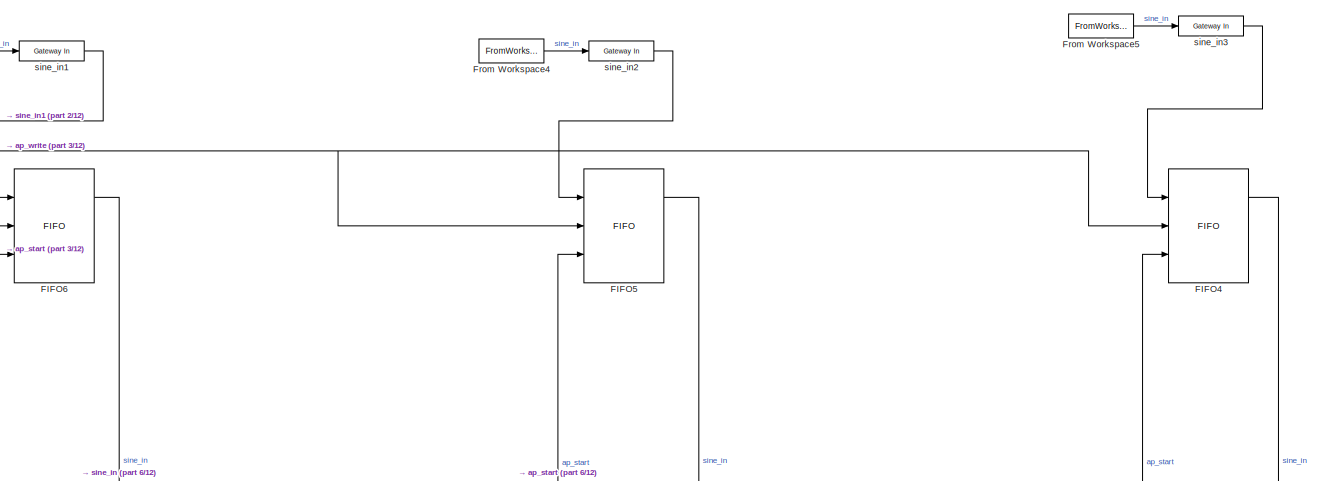
[diagram: root canvas - part 1/12, top left region]
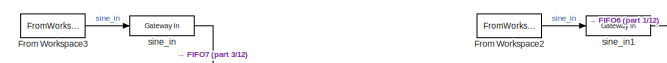
[diagram: root canvas - part 2/12, top left region]
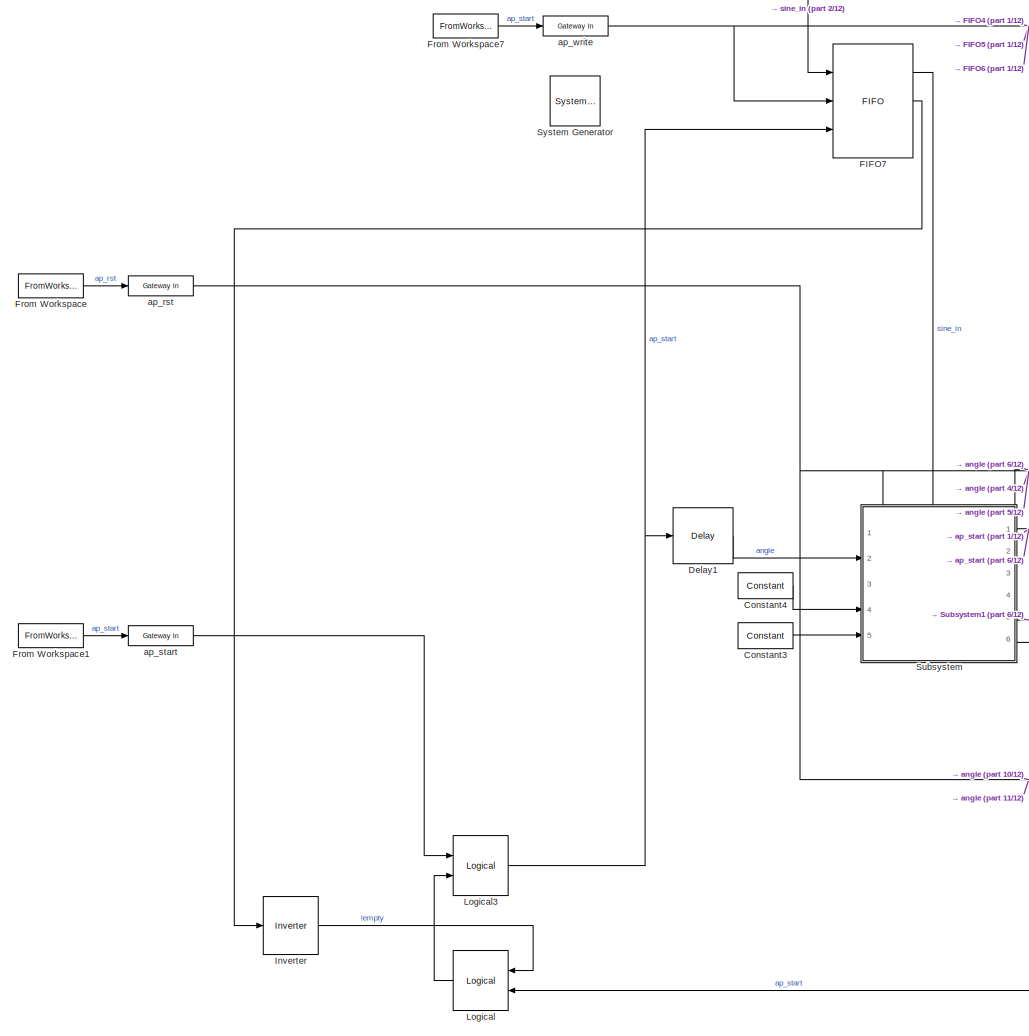
[diagram: root canvas - part 3/12, middle left region]
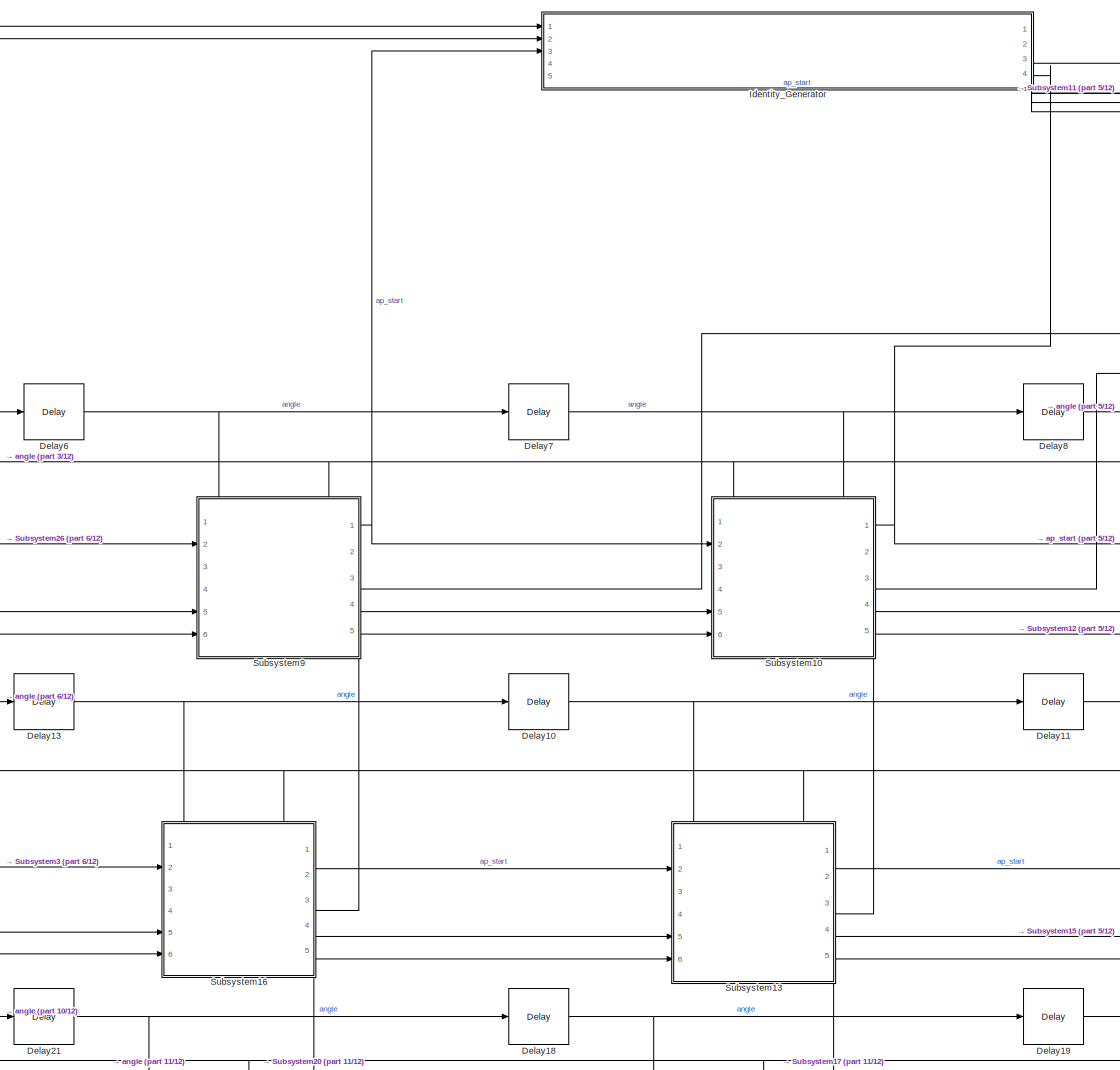
[diagram: root canvas - part 4/12, central region]
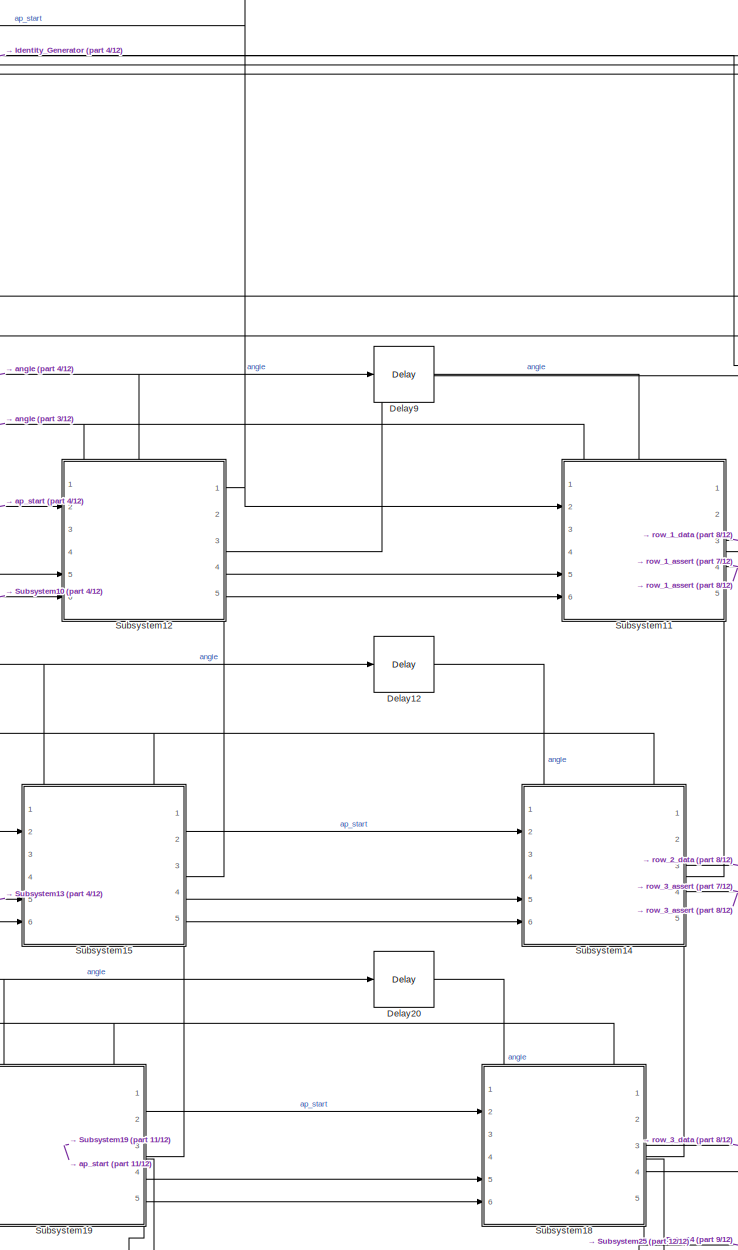
[diagram: root canvas - part 5/12, central region]
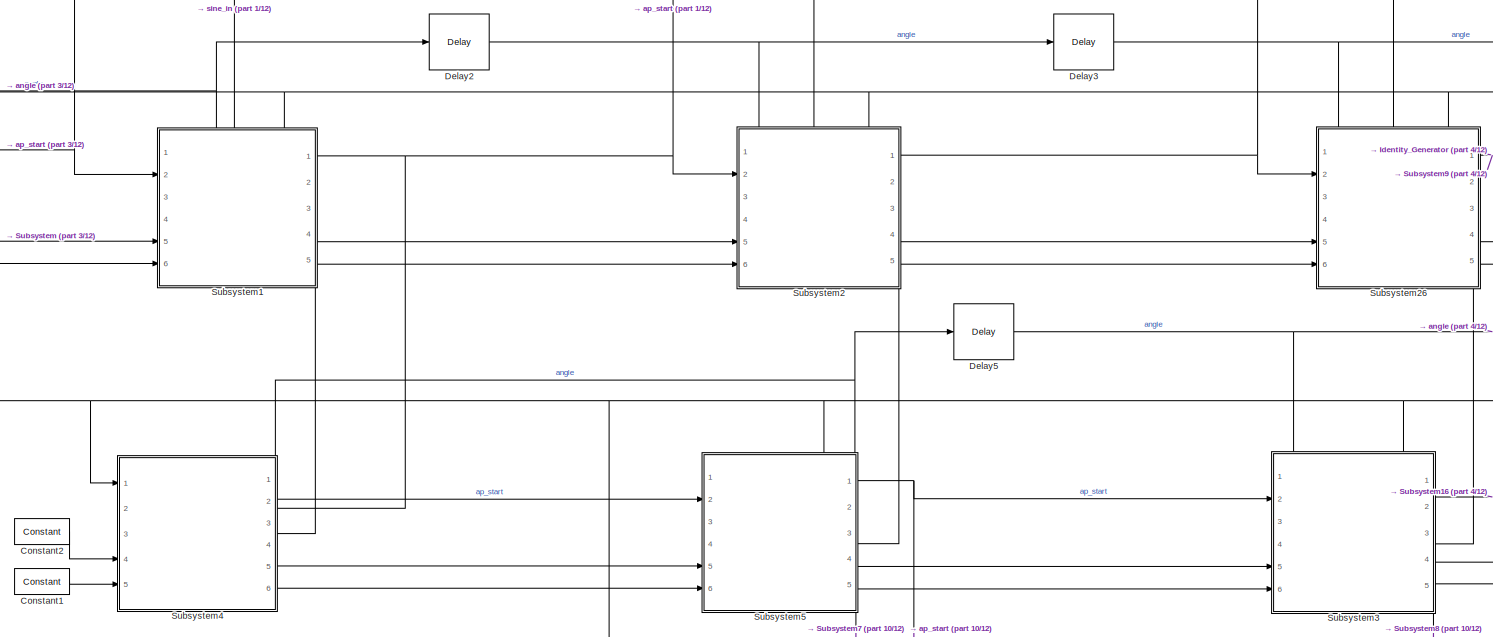
[diagram: root canvas - part 6/12, middle left region]
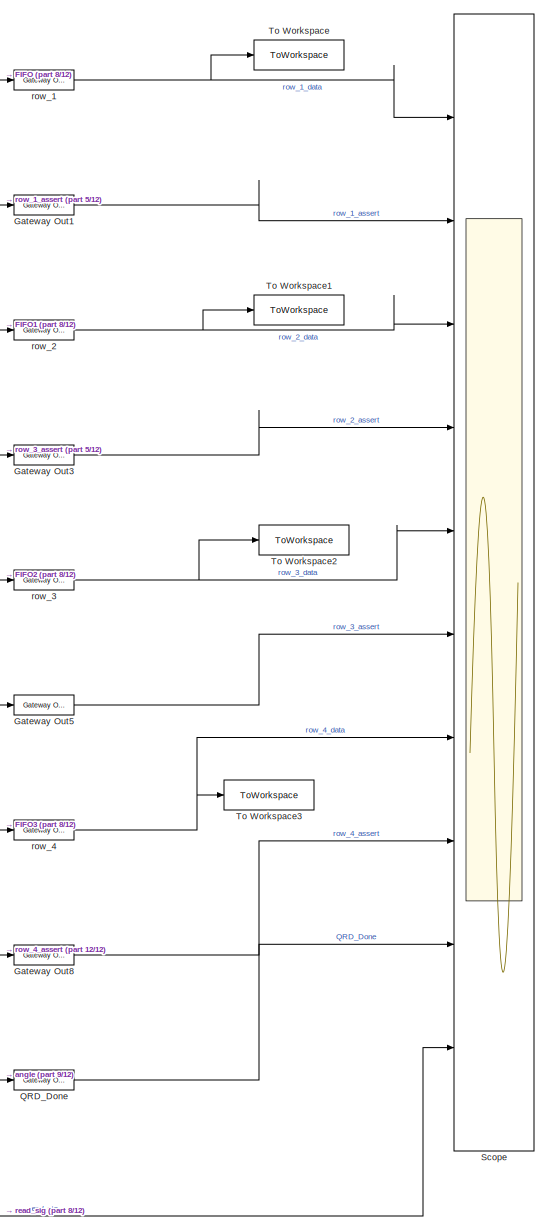
[diagram: root canvas - part 7/12, middle right region]
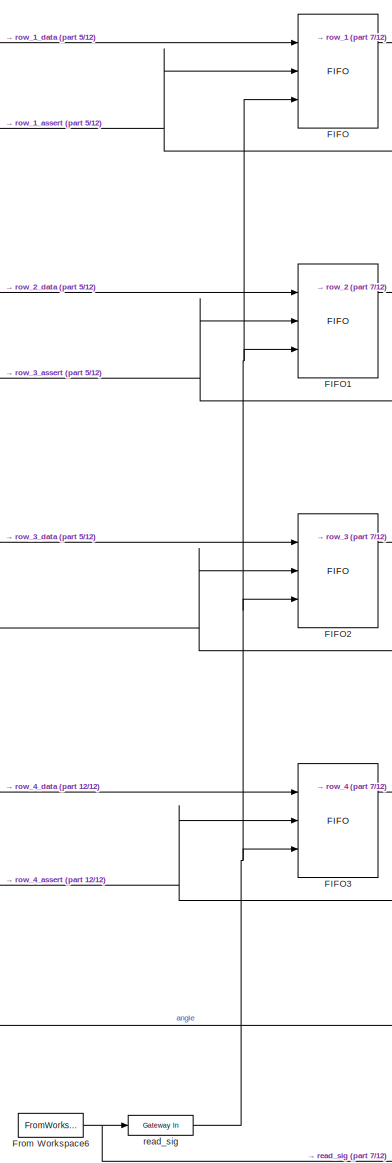
[diagram: root canvas - part 8/12, bottom right region]
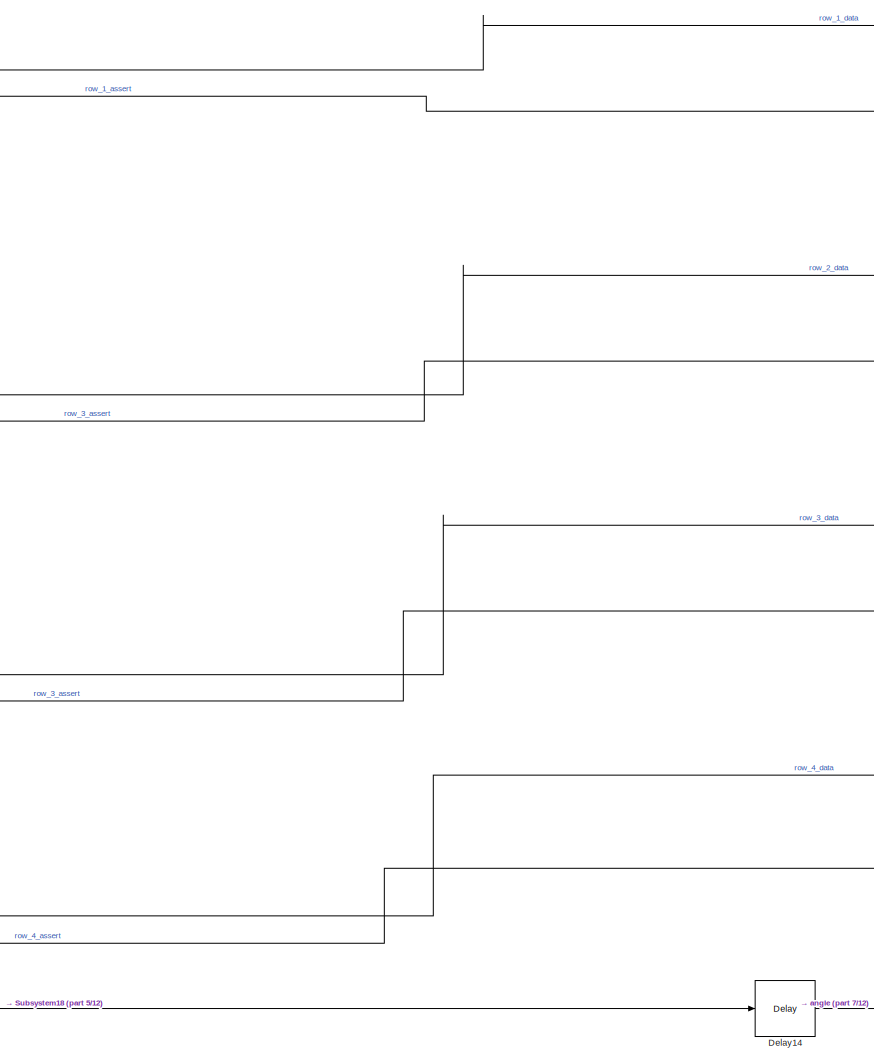
[diagram: root canvas - part 9/12, middle right region]
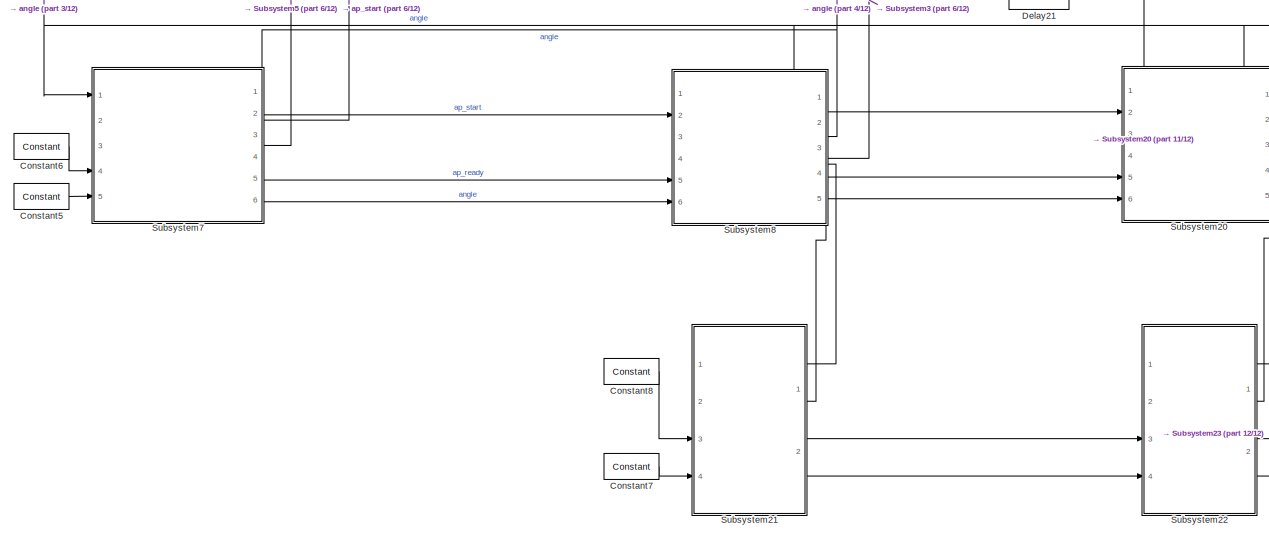
[diagram: root canvas - part 10/12, bottom center region]
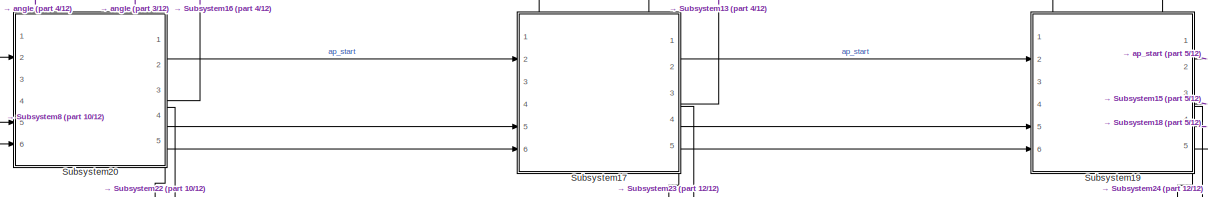
[diagram: root canvas - part 11/12, bottom center region]
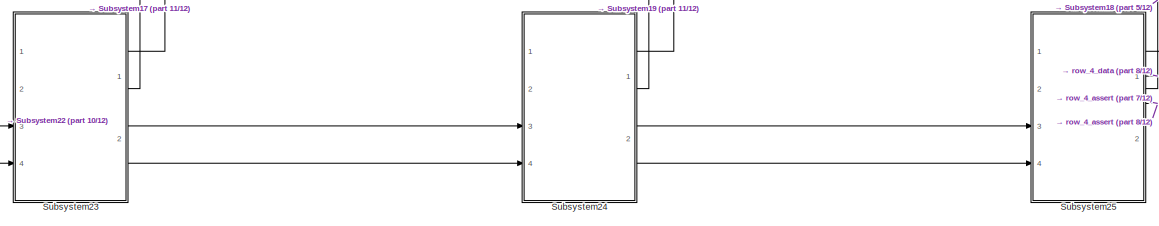
[diagram: root canvas - part 12/12, bottom center region]
MODEL slx_93025ea63f82
KIND model
CONFIG AbsTol = auto
CONFIG EnableMultiTasking = off
CONFIG FixedStep = auto
CONFIG MaxStep = auto
CONFIG MinStep = auto
CONFIG RelTol = 1e-3
CONFIG SampleTimeConstraint = Unconstrained
CONFIG SolverName = VariableStepAuto
CONFIG StartTime = 0.0
CONFIG StopTime = double(sim_length)
BLOCK [Reference]  System Generator  REF=xbsIndex_r4/ System Generator
  AttributesFormatString = System\nGenerator
  Ports = []
  SourceBlock = xbsIndex_r4/ System Generator
  SourceType = Xilinx System Generator Block
  Tag = genX
  UserDataPersistent = on
BLOCK [Reference] Constant1  REF=hdlBasic/Constant
  Ports = [0, 1]
  SourceBlock = hdlBasic/Constant
  SourceType = Constant Block Block
BLOCK [Reference] Constant2  REF=hdlBasic/Constant
  Ports = [0, 1]
  SourceBlock = hdlBasic/Constant
  SourceType = Constant Block Block
BLOCK [Reference] Constant3  REF=hdlBasic/Constant
  Ports = [0, 1]
  SourceBlock = hdlBasic/Constant
  SourceType = Constant Block Block
BLOCK [Reference] Constant4  REF=hdlBasic/Constant
  Ports = [0, 1]
  SourceBlock = hdlBasic/Constant
  SourceType = Constant Block Block
BLOCK [Reference] Constant5  REF=hdlBasic/Constant
  Ports = [0, 1]
  SourceBlock = hdlBasic/Constant
  SourceType = Constant Block Block
BLOCK [Reference] Constant6  REF=hdlBasic/Constant
  Ports = [0, 1]
  SourceBlock = hdlBasic/Constant
  SourceType = Constant Block Block
BLOCK [Reference] Constant7  REF=hdlBasic/Constant
  Ports = [0, 1]
  SourceBlock = hdlBasic/Constant
  SourceType = Constant Block Block
BLOCK [Reference] Constant8  REF=hdlBasic/Constant
  Ports = [0, 1]
  SourceBlock = hdlBasic/Constant
  SourceType = Constant Block Block
BLOCK [Reference] Delay1  REF=hdlBasic/Delay
  NameLocation = top
  Ports = [1, 1]
  SourceBlock = hdlBasic/Delay
  SourceType = Delay Block
BLOCK [Reference] Delay10  REF=hdlBasic/Delay
  NameLocation = top
  Ports = [1, 1]
  SourceBlock = hdlBasic/Delay
  SourceType = Delay Block
BLOCK [Reference] Delay11  REF=hdlBasic/Delay
  NameLocation = top
  Ports = [1, 1]
  SourceBlock = hdlBasic/Delay
  SourceType = Delay Block
BLOCK [Reference] Delay12  REF=hdlBasic/Delay
  NameLocation = top
  Ports = [1, 1]
  SourceBlock = hdlBasic/Delay
  SourceType = Delay Block
BLOCK [Reference] Delay13  REF=hdlBasic/Delay
  NameLocation = top
  Ports = [1, 1]
  SourceBlock = hdlBasic/Delay
  SourceType = Delay Block
BLOCK [Reference] Delay14  REF=hdlBasic/Delay
  NameLocation = top
  Ports = [1, 1]
  SourceBlock = hdlBasic/Delay
  SourceType = Delay Block
BLOCK [Reference] Delay18  REF=hdlBasic/Delay
  NameLocation = top
  Ports = [1, 1]
  SourceBlock = hdlBasic/Delay
  SourceType = Delay Block
BLOCK [Reference] Delay19  REF=hdlBasic/Delay
  NameLocation = top
  Ports = [1, 1]
  SourceBlock = hdlBasic/Delay
  SourceType = Delay Block
BLOCK [Reference] Delay2  REF=hdlBasic/Delay
  NameLocation = top
  Ports = [1, 1]
  SourceBlock = hdlBasic/Delay
  SourceType = Delay Block
BLOCK [Reference] Delay20  REF=hdlBasic/Delay
  NameLocation = top
  Ports = [1, 1]
  SourceBlock = hdlBasic/Delay
  SourceType = Delay Block
BLOCK [Reference] Delay21  REF=hdlBasic/Delay
  NameLocation = top
  Ports = [1, 1]
  SourceBlock = hdlBasic/Delay
  SourceType = Delay Block
BLOCK [Reference] Delay3  REF=hdlBasic/Delay
  NameLocation = top
  Ports = [1, 1]
  SourceBlock = hdlBasic/Delay
  SourceType = Delay Block
BLOCK [Reference] Delay5  REF=hdlBasic/Delay
  NameLocation = top
  Ports = [1, 1]
  SourceBlock = hdlBasic/Delay
  SourceType = Delay Block
BLOCK [Reference] Delay6  REF=hdlBasic/Delay
  NameLocation = top
  Ports = [1, 1]
  SourceBlock = hdlBasic/Delay
  SourceType = Delay Block
BLOCK [Reference] Delay7  REF=hdlBasic/Delay
  NameLocation = top
  Ports = [1, 1]
  SourceBlock = hdlBasic/Delay
  SourceType = Delay Block
BLOCK [Reference] Delay8  REF=hdlBasic/Delay
  NameLocation = top
  Ports = [1, 1]
  SourceBlock = hdlBasic/Delay
  SourceType = Delay Block
BLOCK [Reference] Delay9  REF=hdlBasic/Delay
  NameLocation = top
  Ports = [1, 1]
  SourceBlock = hdlBasic/Delay
  SourceType = Delay Block
BLOCK [Reference] FIFO  REF=hdlBasic/FIFO
  Ports = [3, 3]
  SourceBlock = hdlBasic/FIFO
  SourceType = FIFO Block Block
BLOCK [Reference] FIFO1  REF=hdlBasic/FIFO
  Ports = [3, 3]
  SourceBlock = hdlBasic/FIFO
  SourceType = FIFO Block Block
BLOCK [Reference] FIFO2  REF=hdlBasic/FIFO
  Ports = [3, 3]
  SourceBlock = hdlBasic/FIFO
  SourceType = FIFO Block Block
BLOCK [Reference] FIFO3  REF=hdlBasic/FIFO
  Ports = [3, 3]
  SourceBlock = hdlBasic/FIFO
  SourceType = FIFO Block Block
BLOCK [Reference] FIFO4  REF=hdlBasic/FIFO
  Ports = [3, 3]
  SourceBlock = hdlBasic/FIFO
  SourceType = FIFO Block Block
BLOCK [Reference] FIFO5  REF=hdlBasic/FIFO
  Ports = [3, 3]
  SourceBlock = hdlBasic/FIFO
  SourceType = FIFO Block Block
BLOCK [Reference] FIFO6  REF=hdlBasic/FIFO
  Ports = [3, 3]
  SourceBlock = hdlBasic/FIFO
  SourceType = FIFO Block Block
BLOCK [Reference] FIFO7  REF=hdlBasic/FIFO
  Ports = [3, 3]
  SourceBlock = hdlBasic/FIFO
  SourceType = FIFO Block Block
BLOCK [FromWorkspace] From Workspace
  OutputAfterFinalValue = Setting to zero
  VariableName = ap_rst
BLOCK [FromWorkspace] From Workspace1
  OutputAfterFinalValue = Setting to zero
  VariableName = ap_start
BLOCK [FromWorkspace] From Workspace2
  OutputAfterFinalValue = Setting to zero
  VariableName = col_2
BLOCK [FromWorkspace] From Workspace3
  OutputAfterFinalValue = Setting to zero
  VariableName = col_1
BLOCK [FromWorkspace] From Workspace4
  OutputAfterFinalValue = Setting to zero
  VariableName = col_3
BLOCK [FromWorkspace] From Workspace5
  OutputAfterFinalValue = Setting to zero
  VariableName = col_4
BLOCK [FromWorkspace] From Workspace6
  OutputAfterFinalValue = Setting to zero
  VariableName = read_sig
BLOCK [FromWorkspace] From Workspace7
  OutputAfterFinalValue = Setting to zero
  VariableName = write_sig
BLOCK [Reference] Gateway Out1  REF=hdlBasic/Gateway Out
  Commented = on
  Ports = [1, 1]
  SourceBlock = hdlBasic/Gateway Out
  SourceType = Gateway Out Block
BLOCK [Reference] Gateway Out3  REF=hdlBasic/Gateway Out
  Commented = on
  Ports = [1, 1]
  SourceBlock = hdlBasic/Gateway Out
  SourceType = Gateway Out Block
BLOCK [Reference] Gateway Out5  REF=hdlBasic/Gateway Out
  Commented = on
  Ports = [1, 1]
  SourceBlock = hdlBasic/Gateway Out
  SourceType = Gateway Out Block
BLOCK [Reference] Gateway Out8  REF=hdlBasic/Gateway Out
  Commented = on
  Ports = [1, 1]
  SourceBlock = hdlBasic/Gateway Out
  SourceType = Gateway Out Block
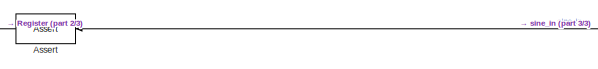
[diagram: Identity_Generator - part 1/3, top center region]
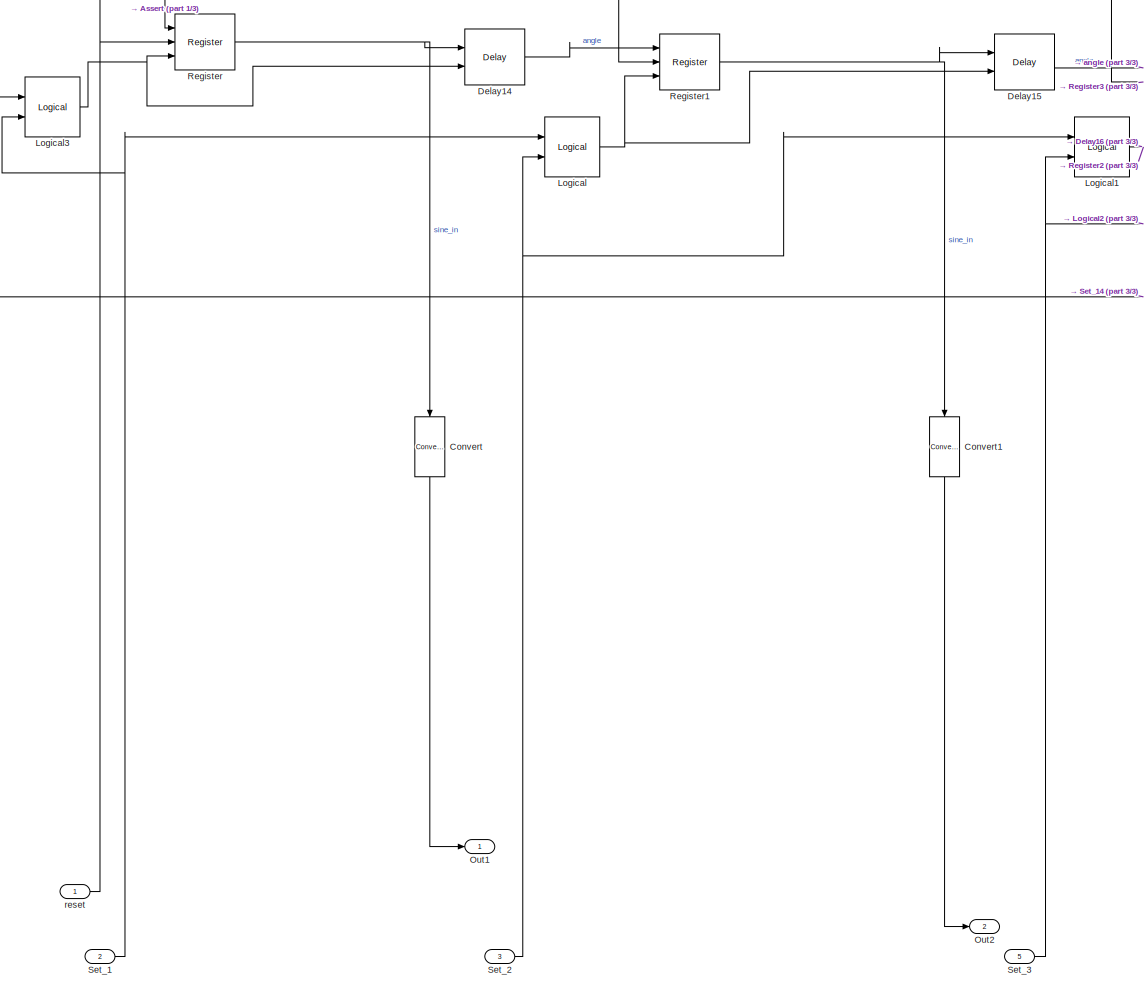
[diagram: Identity_Generator - part 2/3, left side, full height]
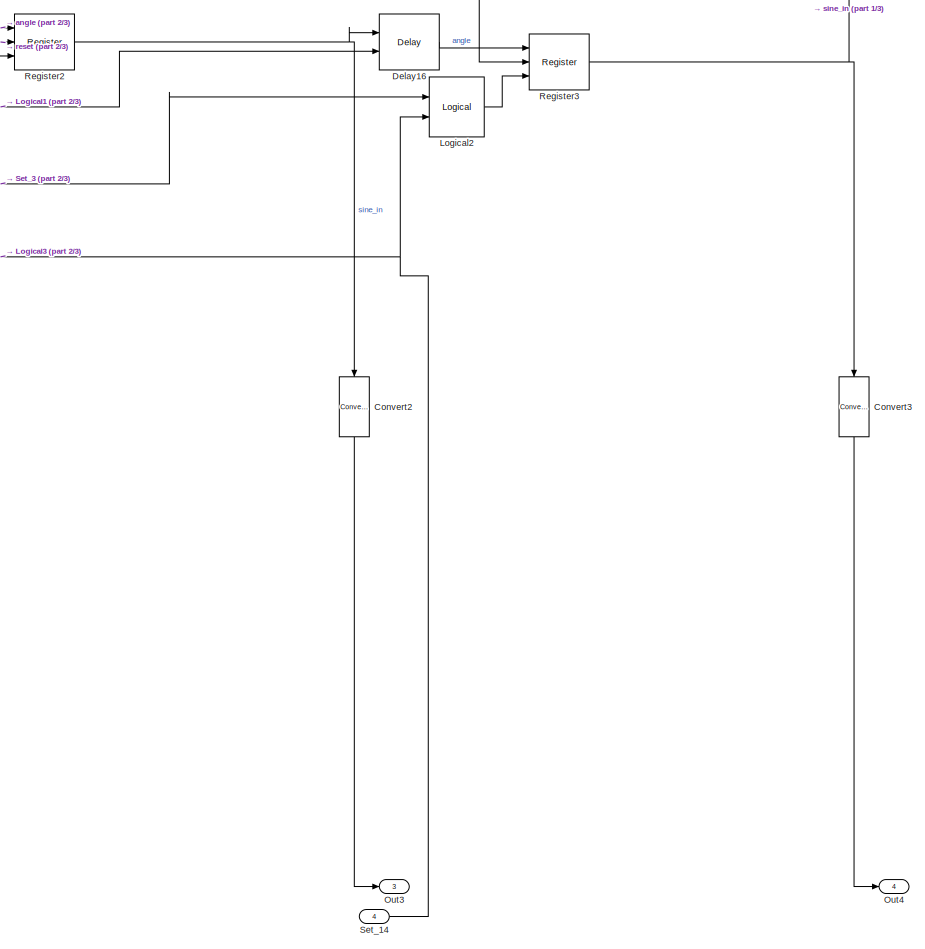
[diagram: Identity_Generator - part 3/3, right side, full height]
BLOCK [SubSystem] Identity_Generator
  PortSchema = {"entries":[{"content":{"sides":[{"content":{"connectorIds":["In1","In2","In3"]},"type":"ConnectorPlacement.EquallySpacedRectSide","uuid":"0b6d598e-788b-4177-bacd-31e0e736e987"},{"content":{"connectorIds":["In4","In5"],"side":"RIGHT"},"type":"ConnectorPlacement.EquallySpacedRectSide","uuid":"345316aa-10fe-48ba-a4ad-44129170dd6e"},{"content":{"connectorIds":[],"side":"TOP"},"type":"ConnectorPlaceme...<+428ch>
  Ports = [5, 4]
  RequestExecContextInheritance = off
BLOCK [Reference] Identity_Generator/Assert  REF=hdlBasic/Assert
  Ports = [1, 1]
  SourceBlock = hdlBasic/Assert
  SourceType = Assert Block
BLOCK [Reference] Identity_Generator/Convert  REF=hdlBasic/Convert
  NameLocation = left
  Ports = [1, 1]
  SourceBlock = hdlBasic/Convert
  SourceType = Type Converter Block
BLOCK [Reference] Identity_Generator/Convert1  REF=hdlBasic/Convert
  NameLocation = left
  Ports = [1, 1]
  SourceBlock = hdlBasic/Convert
  SourceType = Type Converter Block
BLOCK [Reference] Identity_Generator/Convert2  REF=hdlBasic/Convert
  NameLocation = left
  Ports = [1, 1]
  SourceBlock = hdlBasic/Convert
  SourceType = Type Converter Block
BLOCK [Reference] Identity_Generator/Convert3  REF=hdlBasic/Convert
  NameLocation = left
  Ports = [1, 1]
  SourceBlock = hdlBasic/Convert
  SourceType = Type Converter Block
BLOCK [Reference] Identity_Generator/Delay14  REF=hdlBasic/Delay
  NameLocation = top
  Ports = [2, 1]
  SourceBlock = hdlBasic/Delay
  SourceType = Delay Block
BLOCK [Reference] Identity_Generator/Delay15  REF=hdlBasic/Delay
  NameLocation = top
  Ports = [2, 1]
  SourceBlock = hdlBasic/Delay
  SourceType = Delay Block
BLOCK [Reference] Identity_Generator/Delay16  REF=hdlBasic/Delay
  NameLocation = top
  Ports = [2, 1]
  SourceBlock = hdlBasic/Delay
  SourceType = Delay Block
BLOCK [Reference] Identity_Generator/Logical  REF=hdlBasic/Logical
  Ports = [2, 1]
  SourceBlock = hdlBasic/Logical
  SourceType = Logical Block Block
BLOCK [Reference] Identity_Generator/Logical1  REF=hdlBasic/Logical
  Ports = [2, 1]
  SourceBlock = hdlBasic/Logical
  SourceType = Logical Block Block
BLOCK [Reference] Identity_Generator/Logical2  REF=hdlBasic/Logical
  Ports = [2, 1]
  SourceBlock = hdlBasic/Logical
  SourceType = Logical Block Block
BLOCK [Reference] Identity_Generator/Logical3  REF=hdlBasic/Logical
  Ports = [2, 1]
  SourceBlock = hdlBasic/Logical
  SourceType = Logical Block Block
BLOCK [Outport] Identity_Generator/Out1
BLOCK [Outport] Identity_Generator/Out2
  Port = 2
BLOCK [Outport] Identity_Generator/Out3
  Port = 3
BLOCK [Outport] Identity_Generator/Out4
  Port = 4
BLOCK [Reference] Identity_Generator/Register  REF=hdlBasic/Register
  Ports = [3, 1]
  SourceBlock = hdlBasic/Register
  SourceType = Register Block
BLOCK [Reference] Identity_Generator/Register1  REF=hdlBasic/Register
  Ports = [3, 1]
  SourceBlock = hdlBasic/Register
  SourceType = Register Block
BLOCK [Reference] Identity_Generator/Register2  REF=hdlBasic/Register
  Ports = [3, 1]
  SourceBlock = hdlBasic/Register
  SourceType = Register Block
BLOCK [Reference] Identity_Generator/Register3  REF=hdlBasic/Register
  Ports = [3, 1]
  SourceBlock = hdlBasic/Register
  SourceType = Register Block
BLOCK [Inport] Identity_Generator/Set_1
  Port = 2
BLOCK [Inport] Identity_Generator/Set_14
  Port = 4
BLOCK [Inport] Identity_Generator/Set_2
  Port = 3
BLOCK [Inport] Identity_Generator/Set_3
  Port = 5
BLOCK [Inport] Identity_Generator/reset
BLOCK [Reference] Inverter  REF=hdlBasic/Inverter
  Ports = [1, 1]
  SourceBlock = hdlBasic/Inverter
  SourceType = Inverter Block
BLOCK [Reference] Logical  REF=hdlBasic/Logical
  Ports = [2, 1]
  SourceBlock = hdlBasic/Logical
  SourceType = Logical Block Block
BLOCK [Reference] Logical3  REF=hdlBasic/Logical
  Ports = [2, 1]
  SourceBlock = hdlBasic/Logical
  SourceType = Logical Block Block
BLOCK [Reference] QRD_Done  REF=hdlBasic/Gateway Out
  Ports = [1, 1]
  SourceBlock = hdlBasic/Gateway Out
  SourceType = Gateway Out Block
BLOCK [Scope] Scope
  Floating = off
  NumInputPorts = 10
  Ports = [10]
  ScopeSpecificationString = Simulink.scopes.TimeScopeBlockCfg('CurrentConfiguration', extmgr.ConfigurationSet(extmgr.Configuration('Core','General UI',true),extmgr.Configuration('Core','Source UI',true),extmgr.Configuration('Sources','WiredSimulink',true),extmgr.Configuration('Visuals','Time Domain',true,'SerializedDisplays',{struct('MinYLimReal','-0.14841','MaxYLimReal','1.33566','YLabelReal','','MinYLimMag','0.00000','MaxY...<+9350ch>
BLOCK [SubSystem] Subsystem
  PortSchema = {"entries":[{"content":{"sides":[{"content":{"connectorIds":["In2","In4","In5"]},"type":"ConnectorPlacement.EquallySpacedRectSide","uuid":"1346c518-8b2f-4526-a2ea-39cbeadf4b85"},{"content":{"connectorIds":["Out1","Out3","Out4"],"side":"RIGHT"},"type":"ConnectorPlacement.EquallySpacedRectSide","uuid":"7c1b3206-bde6-4225-9c16-bfac1b31b1ce"},{"content":{"connectorIds":["In1","In3","Out2"],"side":"TOP...<+441ch>
  Ports = [5, 6]
  ReferencedSubsystem = ATAN
  RequestExecContextInheritance = off
BLOCK [SubSystem] Subsystem1
  PortSchema = {"entries":[{"content":{"sides":[{"content":{"connectorIds":["In2","In5","In6"]},"type":"ConnectorPlacement.EquallySpacedRectSide","uuid":"c545b77a-6185-4f00-b3c2-6f0e95b73481"},{"content":{"connectorIds":["Out1","Out3","Out4"],"side":"RIGHT"},"type":"ConnectorPlacement.EquallySpacedRectSide","uuid":"77b30f40-c5e6-4fc5-a8bf-3f587adee46d"},{"content":{"connectorIds":["In3","In4","In1"],"side":"TOP"...<+440ch>  <repeated x15 — deduplicated; at blocks: Subsystem1, Subsystem13, Subsystem14, Subsystem15, Subsystem16, Subsystem17, Subsystem18, Subsystem19, Subsystem2, Subsystem20, Subsystem26, Subsystem3, Subsystem5, Subsystem8, Subsystem9>
  Ports = [6, 5]
  ReferencedSubsystem = ROT
  RequestExecContextInheritance = off
BLOCK [SubSystem] Subsystem10
  PortSchema = {"entries":[{"content":{"sides":[{"content":{"connectorIds":["In2","In5","In6"]},"type":"ConnectorPlacement.EquallySpacedRectSide","uuid":"c545b77a-6185-4f00-b3c2-6f0e95b73481"},{"content":{"connectorIds":["Out1","Out3","Out4"],"side":"RIGHT"},"type":"ConnectorPlacement.EquallySpacedRectSide","uuid":"77b30f40-c5e6-4fc5-a8bf-3f587adee46d"},{"content":{"connectorIds":["In1","In4","In3"],"side":"TOP"...<+440ch>
  Ports = [6, 5]
  ReferencedSubsystem = ROT
  RequestExecContextInheritance = off
BLOCK [SubSystem] Subsystem11
  PortSchema = {"entries":[{"content":{"sides":[{"content":{"connectorIds":["In2","In5","In6"]},"type":"ConnectorPlacement.EquallySpacedRectSide","uuid":"c545b77a-6185-4f00-b3c2-6f0e95b73481"},{"content":{"connectorIds":["Out1","Out3","Out4"],"side":"RIGHT"},"type":"ConnectorPlacement.EquallySpacedRectSide","uuid":"77b30f40-c5e6-4fc5-a8bf-3f587adee46d"},{"content":{"connectorIds":["In1","In3","In4"],"side":"TOP"...<+440ch>
  Ports = [6, 5]
  ReferencedSubsystem = ROT
  RequestExecContextInheritance = off
BLOCK [SubSystem] Subsystem12
  PortSchema = {"entries":[{"content":{"sides":[{"content":{"connectorIds":["In2","In5","In6"]},"type":"ConnectorPlacement.EquallySpacedRectSide","uuid":"c545b77a-6185-4f00-b3c2-6f0e95b73481"},{"content":{"connectorIds":["Out1","Out3","Out4"],"side":"RIGHT"},"type":"ConnectorPlacement.EquallySpacedRectSide","uuid":"77b30f40-c5e6-4fc5-a8bf-3f587adee46d"},{"content":{"connectorIds":["In1","In3","In4"],"side":"TOP"...<+440ch>
  Ports = [6, 5]
  ReferencedSubsystem = ROT
  RequestExecContextInheritance = off
BLOCK [SubSystem] Subsystem13
  Ports = [6, 5]
  ReferencedSubsystem = ROT
  RequestExecContextInheritance = off
BLOCK [SubSystem] Subsystem14
  Ports = [6, 5]
  ReferencedSubsystem = ROT
  RequestExecContextInheritance = off
BLOCK [SubSystem] Subsystem15
  Ports = [6, 5]
  ReferencedSubsystem = ROT
  RequestExecContextInheritance = off
BLOCK [SubSystem] Subsystem16
  Ports = [6, 5]
  ReferencedSubsystem = ROT
  RequestExecContextInheritance = off
BLOCK [SubSystem] Subsystem17
  Ports = [6, 5]
  ReferencedSubsystem = ROT
  RequestExecContextInheritance = off
BLOCK [SubSystem] Subsystem18
  Ports = [6, 5]
  ReferencedSubsystem = ROT
  RequestExecContextInheritance = off
BLOCK [SubSystem] Subsystem19
  Ports = [6, 5]
  ReferencedSubsystem = ROT
  RequestExecContextInheritance = off
BLOCK [SubSystem] Subsystem2
  Ports = [6, 5]
  ReferencedSubsystem = ROT
  RequestExecContextInheritance = off
BLOCK [SubSystem] Subsystem20
  Ports = [6, 5]
  ReferencedSubsystem = ROT
  RequestExecContextInheritance = off
BLOCK [SubSystem] Subsystem21
  PortSchema = {"entries":[{"content":{"sides":[{"content":{"connectorIds":["In3","In4"]},"type":"ConnectorPlacement.EquallySpacedRectSide","uuid":"faf72d46-e9ca-4554-a625-ae2ca42b272c"},{"content":{"connectorIds":["Out1","Out2"],"side":"RIGHT"},"type":"ConnectorPlacement.EquallySpacedRectSide","uuid":"48df0ee7-6269-49be-b825-f5ec50cf44de"},{"content":{"connectorIds":["In1","In2"],"side":"TOP"},"type":"Connector...<+264ch>  <repeated x5 — deduplicated; at blocks: Subsystem21, Subsystem22, Subsystem23, Subsystem24, Subsystem25>
  Ports = [4, 2]
  ReferencedSubsystem = Output_Selector_Simple
  RequestExecContextInheritance = off
BLOCK [SubSystem] Subsystem22
  Ports = [4, 2]
  ReferencedSubsystem = Output_Selector_Simple
  RequestExecContextInheritance = off
BLOCK [SubSystem] Subsystem23
  Ports = [4, 2]
  ReferencedSubsystem = Output_Selector_Simple
  RequestExecContextInheritance = off
BLOCK [SubSystem] Subsystem24
  Ports = [4, 2]
  ReferencedSubsystem = Output_Selector_Simple
  RequestExecContextInheritance = off
BLOCK [SubSystem] Subsystem25
  Ports = [4, 2]
  ReferencedSubsystem = Output_Selector_Simple
  RequestExecContextInheritance = off
BLOCK [SubSystem] Subsystem26
  Ports = [6, 5]
  ReferencedSubsystem = ROT
  RequestExecContextInheritance = off
BLOCK [SubSystem] Subsystem3
  Ports = [6, 5]
  ReferencedSubsystem = ROT
  RequestExecContextInheritance = off
BLOCK [SubSystem] Subsystem4
  PortSchema = {"entries":[{"content":{"sides":[{"content":{"connectorIds":["In1","In4","In5"]},"type":"ConnectorPlacement.EquallySpacedRectSide","uuid":"2ab3b1c3-ccaa-47c6-871d-fe42e2674163"},{"content":{"connectorIds":["Out1","Out3","Out4"],"side":"RIGHT"},"type":"ConnectorPlacement.EquallySpacedRectSide","uuid":"31fb9cc9-97aa-4ac6-b8a6-a5ac9c63e2b7"},{"content":{"connectorIds":["Out2","In3","In2"],"side":"TOP...<+441ch>
  Ports = [5, 6]
  ReferencedSubsystem = ATAN
  RequestExecContextInheritance = off
BLOCK [SubSystem] Subsystem5
  Ports = [6, 5]
  ReferencedSubsystem = ROT
  RequestExecContextInheritance = off
BLOCK [SubSystem] Subsystem7
  PortSchema = {"entries":[{"content":{"sides":[{"content":{"connectorIds":["In1","In4","In5"]},"type":"ConnectorPlacement.EquallySpacedRectSide","uuid":"2ab3b1c3-ccaa-47c6-871d-fe42e2674163"},{"content":{"connectorIds":["Out1","Out3","Out4"],"side":"RIGHT"},"type":"ConnectorPlacement.EquallySpacedRectSide","uuid":"31fb9cc9-97aa-4ac6-b8a6-a5ac9c63e2b7"},{"content":{"connectorIds":["Out2","In3","In2"],"side":"TOP...<+441ch>
  Ports = [5, 6]
  ReferencedSubsystem = ATAN
  RequestExecContextInheritance = off
BLOCK [SubSystem] Subsystem8
  Ports = [6, 5]
  ReferencedSubsystem = ROT
  RequestExecContextInheritance = off
BLOCK [SubSystem] Subsystem9
  Ports = [6, 5]
  ReferencedSubsystem = ROT
  RequestExecContextInheritance = off
BLOCK [ToWorkspace] To Workspace
  FixptAsFi = on
  MaxDataPoints = inf
  Ports = [1]
  SampleTime = -1
  SaveFormat = Timeseries
  VariableName = row_1
BLOCK [ToWorkspace] To Workspace1
  FixptAsFi = on
  MaxDataPoints = inf
  Ports = [1]
  SampleTime = -1
  SaveFormat = Timeseries
  VariableName = row_2
BLOCK [ToWorkspace] To Workspace2
  FixptAsFi = on
  MaxDataPoints = inf
  Ports = [1]
  SampleTime = -1
  SaveFormat = Timeseries
  VariableName = row_3
BLOCK [ToWorkspace] To Workspace3
  FixptAsFi = on
  MaxDataPoints = inf
  Ports = [1]
  SampleTime = -1
  SaveFormat = Timeseries
  VariableName = row_4
BLOCK [Reference] ap_rst  REF=hdlBasic/Gateway In
  Ports = [1, 1]
  SourceBlock = hdlBasic/Gateway In
  SourceType = Gateway In Block
BLOCK [Reference] ap_start  REF=hdlBasic/Gateway In
  Ports = [1, 1]
  SourceBlock = hdlBasic/Gateway In
  SourceType = Gateway In Block
BLOCK [Reference] ap_write  REF=hdlBasic/Gateway In
  Ports = [1, 1]
  SourceBlock = hdlBasic/Gateway In
  SourceType = Gateway In Block
BLOCK [Reference] read_sig  REF=hdlBasic/Gateway In
  Ports = [1, 1]
  SourceBlock = hdlBasic/Gateway In
  SourceType = Gateway In Block
BLOCK [Reference] row_1  REF=hdlBasic/Gateway Out
  Ports = [1, 1]
  SourceBlock = hdlBasic/Gateway Out
  SourceType = Gateway Out Block
BLOCK [Reference] row_2  REF=hdlBasic/Gateway Out
  Ports = [1, 1]
  SourceBlock = hdlBasic/Gateway Out
  SourceType = Gateway Out Block
BLOCK [Reference] row_3  REF=hdlBasic/Gateway Out
  Ports = [1, 1]
  SourceBlock = hdlBasic/Gateway Out
  SourceType = Gateway Out Block
BLOCK [Reference] row_4  REF=hdlBasic/Gateway Out
  Ports = [1, 1]
  SourceBlock = hdlBasic/Gateway Out
  SourceType = Gateway Out Block
BLOCK [Reference] sine_in  REF=hdlBasic/Gateway In
  Ports = [1, 1]
  SourceBlock = hdlBasic/Gateway In
  SourceType = Gateway In Block
BLOCK [Reference] sine_in1  REF=hdlBasic/Gateway In
  Ports = [1, 1]
  SourceBlock = hdlBasic/Gateway In
  SourceType = Gateway In Block
BLOCK [Reference] sine_in2  REF=hdlBasic/Gateway In
  Ports = [1, 1]
  SourceBlock = hdlBasic/Gateway In
  SourceType = Gateway In Block
BLOCK [Reference] sine_in3  REF=hdlBasic/Gateway In
  Ports = [1, 1]
  SourceBlock = hdlBasic/Gateway In
  SourceType = Gateway In Block
LINE Constant1:1 -> Subsystem4:5
LINE Constant2:1 -> Subsystem4:4
LINE Constant3:1 -> Subsystem:5
LINE Constant4:1 -> Subsystem:4
LINE Constant5:1 -> Subsystem7:5
LINE Constant6:1 -> Subsystem7:4
LINE Constant7:1 -> Subsystem21:4
LINE Constant8:1 -> Subsystem21:3
NET Delay10:1 -> Delay11:1, Subsystem13:3
NET Delay11:1 -> Delay12:1, Subsystem15:3
LINE Delay12:1 -> Subsystem14:3
NET Delay13:1 -> Delay10:1, Subsystem16:3
LINE Delay14:1 -> QRD_Done:1
NET Delay18:1 -> Delay19:1, Subsystem17:3
NET Delay19:1 -> Delay20:1, Subsystem19:3
LINE Delay1:1 -> Subsystem:2
LINE Delay20:1 -> Subsystem18:3
NET Delay21:1 -> Delay18:1, Subsystem20:3
NET Delay2:1 -> Delay3:1, Subsystem2:3
NET Delay3:1 -> Delay6:1, Subsystem26:3
NET Delay5:1 -> Delay13:1, Subsystem3:3
NET Delay6:1 -> Delay7:1, Subsystem9:3
NET Delay7:1 -> Delay8:1, Subsystem10:3
NET Delay8:1 -> Delay9:1, Subsystem12:3
LINE Delay9:1 -> Subsystem11:3
LINE FIFO1:1 -> row_2:1
LINE FIFO2:1 -> row_3:1
LINE FIFO3:1 -> row_4:1
LINE FIFO4:1 -> Subsystem26:4
LINE FIFO5:1 -> Subsystem2:4
LINE FIFO6:1 -> Subsystem1:4
LINE FIFO7:1 -> Subsystem:3
LINE FIFO7:2 -> Inverter:1
LINE FIFO:1 -> row_1:1
LINE From Workspace1:1 -> ap_start:1
LINE From Workspace2:1 -> sine_in1:1
LINE From Workspace3:1 -> sine_in:1
LINE From Workspace4:1 -> sine_in2:1
LINE From Workspace5:1 -> sine_in3:1
NET From Workspace6:1 -> Scope:10, read_sig:1
LINE From Workspace7:1 -> ap_write:1
LINE From Workspace:1 -> ap_rst:1
LINE Gateway Out1:1 -> Scope:2
LINE Gateway Out3:1 -> Scope:4
LINE Gateway Out5:1 -> Scope:6
LINE Gateway Out8:1 -> Scope:8
LINE Identity_Generator/Assert:1 -> Identity_Generator/Register:1
LINE Identity_Generator/Convert1:1 -> Identity_Generator/Out2:1
LINE Identity_Generator/Convert2:1 -> Identity_Generator/Out3:1
LINE Identity_Generator/Convert3:1 -> Identity_Generator/Out4:1
LINE Identity_Generator/Convert:1 -> Identity_Generator/Out1:1
LINE Identity_Generator/Delay14:1 -> Identity_Generator/Register1:1
LINE Identity_Generator/Delay15:1 -> Identity_Generator/Register2:1
LINE Identity_Generator/Delay16:1 -> Identity_Generator/Register3:1
NET Identity_Generator/Logical1:1 -> Identity_Generator/Delay16:2, Identity_Generator/Register2:3
LINE Identity_Generator/Logical2:1 -> Identity_Generator/Register3:3
NET Identity_Generator/Logical3:1 -> Identity_Generator/Delay14:2, Identity_Generator/Register:3
NET Identity_Generator/Logical:1 -> Identity_Generator/Delay15:2, Identity_Generator/Register1:3
NET Identity_Generator/Register1:1 -> Identity_Generator/Convert1:1, Identity_Generator/Delay15:1
NET Identity_Generator/Register2:1 -> Identity_Generator/Convert2:1, Identity_Generator/Delay16:1
NET Identity_Generator/Register3:1 -> Identity_Generator/Assert:1, Identity_Generator/Convert3:1
NET Identity_Generator/Register:1 -> Identity_Generator/Convert:1, Identity_Generator/Delay14:1
NET Identity_Generator/Set_14:1 -> Identity_Generator/Logical2:2, Identity_Generator/Logical3:1
NET Identity_Generator/Set_1:1 -> Identity_Generator/Logical3:2, Identity_Generator/Logical:1
NET Identity_Generator/Set_2:1 -> Identity_Generator/Logical1:1, Identity_Generator/Logical:2
NET Identity_Generator/Set_3:1 -> Identity_Generator/Logical1:2, Identity_Generator/Logical2:1
NET Identity_Generator/reset:1 -> Identity_Generator/Register1:2, Identity_Generator/Register2:2, Identity_Generator/Register3:2, Identity_Generator/Register:2
LINE Identity_Generator:1 -> Subsystem9:4
LINE Identity_Generator:2 -> Subsystem10:4
LINE Identity_Generator:3 -> Subsystem12:4
LINE Identity_Generator:4 -> Subsystem11:4
LINE Inverter:1 -> Logical:1
NET Logical3:1 -> Delay1:1, FIFO7:3
LINE Logical:1 -> Logical3:2
LINE QRD_Done:1 -> Scope:9
NET Subsystem10:1 -> Identity_Generator:5, Subsystem12:2
LINE Subsystem10:2 -> Subsystem13:4
LINE Subsystem10:3 -> Subsystem12:5
LINE Subsystem10:4 -> Subsystem12:6
LINE Subsystem11:2 -> Subsystem14:4
LINE Subsystem11:3 -> FIFO:1
NET Subsystem11:4 -> FIFO:2, Gateway Out1:1
NET Subsystem12:1 -> Identity_Generator:4, Subsystem11:2
LINE Subsystem12:2 -> Subsystem15:4
LINE Subsystem12:3 -> Subsystem11:5
LINE Subsystem12:4 -> Subsystem11:6
LINE Subsystem13:1 -> Subsystem15:2
LINE Subsystem13:2 -> Subsystem17:4
LINE Subsystem13:3 -> Subsystem15:5
LINE Subsystem13:4 -> Subsystem15:6
LINE Subsystem14:2 -> Subsystem18:4
LINE Subsystem14:3 -> FIFO1:1
NET Subsystem14:4 -> FIFO1:2, Gateway Out3:1
LINE Subsystem15:1 -> Subsystem14:2
LINE Subsystem15:2 -> Subsystem19:4
LINE Subsystem15:3 -> Subsystem14:5
LINE Subsystem15:4 -> Subsystem14:6
LINE Subsystem16:1 -> Subsystem13:2
LINE Subsystem16:2 -> Subsystem20:4
LINE Subsystem16:3 -> Subsystem13:5
LINE Subsystem16:4 -> Subsystem13:6
LINE Subsystem17:1 -> Subsystem19:2
LINE Subsystem17:2 -> Subsystem23:1
LINE Subsystem17:3 -> Subsystem19:5
LINE Subsystem17:4 -> Subsystem19:6
LINE Subsystem17:5 -> Subsystem23:2
LINE Subsystem18:2 -> Subsystem25:1
LINE Subsystem18:3 -> FIFO2:1
NET Subsystem18:4 -> FIFO2:2, Gateway Out5:1
NET Subsystem18:5 -> Delay14:1, Subsystem25:2
LINE Subsystem19:1 -> Subsystem18:2
LINE Subsystem19:2 -> Subsystem24:1
LINE Subsystem19:3 -> Subsystem18:5
LINE Subsystem19:4 -> Subsystem18:6
LINE Subsystem19:5 -> Subsystem24:2
NET Subsystem1:1 -> FIFO5:3, Subsystem2:2, Subsystem4:2
LINE Subsystem1:2 -> Subsystem4:3
LINE Subsystem1:3 -> Subsystem2:5
LINE Subsystem1:4 -> Subsystem2:6
LINE Subsystem20:1 -> Subsystem17:2
LINE Subsystem20:2 -> Subsystem22:1
LINE Subsystem20:3 -> Subsystem17:5
LINE Subsystem20:4 -> Subsystem17:6
LINE Subsystem20:5 -> Subsystem22:2
LINE Subsystem21:1 -> Subsystem22:3
LINE Subsystem21:2 -> Subsystem22:4
LINE Subsystem22:1 -> Subsystem23:3
LINE Subsystem22:2 -> Subsystem23:4
LINE Subsystem23:1 -> Subsystem24:3
LINE Subsystem23:2 -> Subsystem24:4
LINE Subsystem24:1 -> Subsystem25:3
LINE Subsystem24:2 -> Subsystem25:4
LINE Subsystem25:1 -> FIFO3:1
NET Subsystem25:2 -> FIFO3:2, Gateway Out8:1
NET Subsystem26:1 -> Identity_Generator:2, Subsystem9:2
LINE Subsystem26:2 -> Subsystem3:4
LINE Subsystem26:3 -> Subsystem9:5
LINE Subsystem26:4 -> Subsystem9:6
NET Subsystem2:1 -> FIFO4:3, Subsystem26:2
LINE Subsystem2:2 -> Subsystem5:4
LINE Subsystem2:3 -> Subsystem26:5
LINE Subsystem2:4 -> Subsystem26:6
LINE Subsystem3:1 -> Subsystem16:2
LINE Subsystem3:2 -> Subsystem8:4
LINE Subsystem3:3 -> Subsystem16:5
LINE Subsystem3:4 -> Subsystem16:6
LINE Subsystem4:1 -> Subsystem5:2
NET Subsystem4:2 -> Delay5:1, Subsystem5:3
LINE Subsystem4:3 -> Subsystem5:5
LINE Subsystem4:4 -> Subsystem5:6
NET Subsystem5:1 -> Subsystem3:2, Subsystem7:2
LINE Subsystem5:2 -> Subsystem7:3
LINE Subsystem5:3 -> Subsystem3:5
LINE Subsystem5:4 -> Subsystem3:6
LINE Subsystem7:1 -> Subsystem8:2
NET Subsystem7:2 -> Delay21:1, Subsystem8:3
LINE Subsystem7:3 -> Subsystem8:5
LINE Subsystem7:4 -> Subsystem8:6
LINE Subsystem8:1 -> Subsystem20:2
LINE Subsystem8:2 -> Subsystem21:1
LINE Subsystem8:3 -> Subsystem20:5
LINE Subsystem8:4 -> Subsystem20:6
LINE Subsystem8:5 -> Subsystem21:2
NET Subsystem9:1 -> Identity_Generator:3, Subsystem10:2
LINE Subsystem9:2 -> Subsystem16:4
LINE Subsystem9:3 -> Subsystem10:5
LINE Subsystem9:4 -> Subsystem10:6
NET Subsystem:1 -> FIFO6:3, Logical:2, Subsystem1:2
NET Subsystem:2 -> Delay2:1, Subsystem1:3
LINE Subsystem:3 -> Subsystem1:5
LINE Subsystem:4 -> Subsystem1:6
NET ap_rst:1 -> Identity_Generator:1, Subsystem10:1, Subsystem11:1, Subsystem12:1, Subsystem13:1, Subsystem14:1, Subsystem15:1, Subsystem16:1, Subsystem17:1, Subsystem18:1, Subsystem19:1, Subsystem1:1, Subsystem20:1, Subsystem26:1, Subsystem2:1, Subsystem3:1, Subsystem4:1, Subsystem5:1, Subsystem7:1, Subsystem8:1, Subsystem9:1, Subsystem:1
LINE ap_start:1 -> Logical3:1
NET ap_write:1 -> FIFO4:2, FIFO5:2, FIFO6:2, FIFO7:2
NET read_sig:1 -> FIFO1:3, FIFO2:3, FIFO3:3, FIFO:3
NET row_1:1 -> Scope:1, To Workspace:1
NET row_2:1 -> Scope:3, To Workspace1:1
NET row_3:1 -> Scope:5, To Workspace2:1
NET row_4:1 -> Scope:7, To Workspace3:1
LINE sine_in1:1 -> FIFO6:1
LINE sine_in2:1 -> FIFO5:1
LINE sine_in3:1 -> FIFO4:1
LINE sine_in:1 -> FIFO7:1
note: NET lines group one-source signal fan-out (src -> all destinations, sorted); 1:1 wires keep LINE
